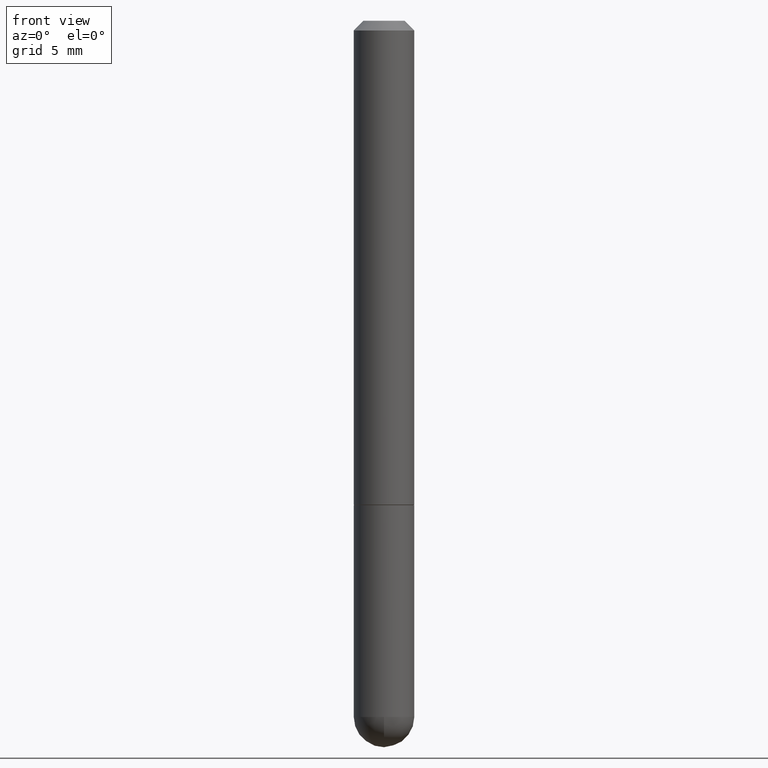
[diagram: clean part render]
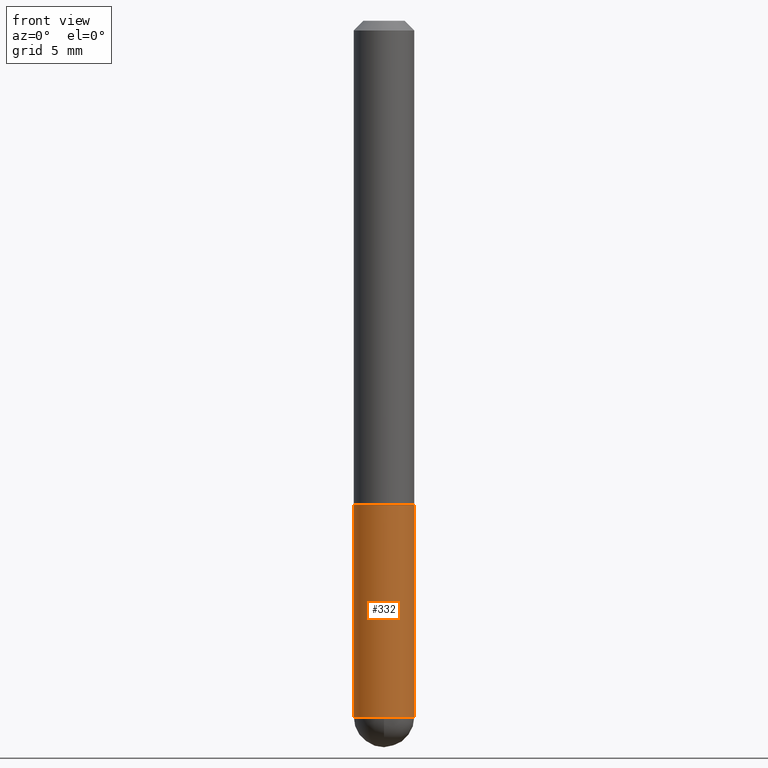
[diagram: same view with one face highlighted and labeled with its STEP entity id]
A machine part, front view. The second image highlights one B-rep face of the part: STEP entity #332.
In plain terms, the highlighted cylindrical surface (edge-blend (fillet) strip) has radius 1.5875 mm, axis along (-0, 0, 1).
Its self-contained STEP definition (entity closure, byte-faithful):
#6 = CARTESIAN_POINT ( 'NONE',  ( 0.000000000000000000, 0.000000000000000000, 0.000000000000000000 ) ) ;
#9 = FACE_OUTER_BOUND ( 'NONE', #378, .T. ) ;
#10 = VERTEX_POINT ( 'NONE', #351 ) ;
#21 = DIRECTION ( 'NONE',  ( -2.445468806185136877E-29, 3.491481338843145188E-15, 1.000000000000000000 ) ) ;
#28 = CARTESIAN_POINT ( 'NONE',  ( -0.06250000000000000000, -3.811153671865022332E-15, -1.000000000000000222 ) ) ;
#39 = VERTEX_POINT ( 'NONE', #28 ) ;
#40 = DIRECTION ( 'NONE',  ( 1.000000000000000000, -6.982962677686262766E-15, 0.000000000000000000 ) ) ;
#44 = DIRECTION ( 'NONE',  ( -2.445468806185136597E-29, 3.491481338843145583E-15, 1.000000000000000000 ) ) ;
#57 = LINE ( 'NONE', #287, #227 ) ;
#61 = VERTEX_POINT ( 'NONE', #187 ) ;
#70 = CYLINDRICAL_SURFACE ( 'NONE', #106, 0.06249999999999997224 ) ;
#73 = ORIENTED_EDGE ( 'NONE', *, *, #407, .T. ) ;
#77 = EDGE_CURVE ( 'NONE', #10, #39, #57, .T. ) ;
#84 = CARTESIAN_POINT ( 'NONE',  ( -4.440892098500294840E-16, -0.06250000000000532907, -1.437500000000000000 ) ) ;
#85 = VECTOR ( 'NONE', #87, 39.37007874015748143 ) ;
#87 = DIRECTION ( 'NONE',  ( -2.445468806185136877E-29, 3.491481338843145188E-15, 1.000000000000000000 ) ) ;
#101 = VERTEX_POINT ( 'NONE', #84 ) ;
#106 = AXIS2_PLACEMENT_3D ( 'NONE', #6, #201, #322 ) ;
#120 = CARTESIAN_POINT ( 'NONE',  ( 2.445468806185136877E-29, -3.491481338843145977E-15, -1.000000000000000222 ) ) ;
#144 = ORIENTED_EDGE ( 'NONE', *, *, #231, .T. ) ;
#145 = DIRECTION ( 'NONE',  ( -2.445468806185136597E-29, 3.491481338843145583E-15, 1.000000000000000000 ) ) ;
#166 = ORIENTED_EDGE ( 'NONE', *, *, #171, .T. ) ;
#171 = EDGE_CURVE ( 'NONE', #61, #410, #404, .T. ) ;
#182 = CIRCLE ( 'NONE', #384, 0.06249999999999995143 ) ;
#187 = CARTESIAN_POINT ( 'NONE',  ( 0.06249999999999995143, -4.691678049070475040E-15, -1.437500000000000222 ) ) ;
#194 = CARTESIAN_POINT ( 'NONE',  ( 3.515361408891134418E-29, -5.019004424587023131E-15, -1.437500000000000222 ) ) ;
#201 = DIRECTION ( 'NONE',  ( -2.445468806185136597E-29, 3.491481338843145583E-15, 1.000000000000000000 ) ) ;
#215 = AXIS2_PLACEMENT_3D ( 'NONE', #120, #145, #40 ) ;
#227 = VECTOR ( 'NONE', #21, 39.37007874015748143 ) ;
#231 = EDGE_CURVE ( 'NONE', #101, #61, #182, .T. ) ;
#235 = CIRCLE ( 'NONE', #367, 0.06249999999999995143 ) ;
#239 = CARTESIAN_POINT ( 'NONE',  ( 3.515361408891134418E-29, -5.019004424587023131E-15, -1.437500000000000222 ) ) ;
#271 = DIRECTION ( 'NONE',  ( -2.445468806185136597E-29, 3.491481338843145583E-15, 1.000000000000000000 ) ) ;
#287 = CARTESIAN_POINT ( 'NONE',  ( -0.06249999999999997224, 4.440892098500624190E-16, -3.074334431409315063E-30 ) ) ;
#293 = ORIENTED_EDGE ( 'NONE', *, *, #77, .F. ) ;
#302 = CARTESIAN_POINT ( 'NONE',  ( 0.06250000000000000000, -3.927916506198537646E-15, -1.000000000000000222 ) ) ;
#320 = ORIENTED_EDGE ( 'NONE', *, *, #381, .F. ) ;
#322 = DIRECTION ( 'NONE',  ( 1.000000000000000000, -6.982962677686266711E-15, 4.876176775795935793E-29 ) ) ;
#332 = ADVANCED_FACE ( 'NONE', ( #9 ), #70, .T. ) ;
#350 = CIRCLE ( 'NONE', #215, 0.06250000000000000000 ) ;
#351 = CARTESIAN_POINT ( 'NONE',  ( -0.06249999999999995143, -3.811153671865022332E-15, -1.437500000000000222 ) ) ;
#354 = DIRECTION ( 'NONE',  ( 1.000000000000000000, -6.982962677686268288E-15, 0.000000000000000000 ) ) ;
#365 = DIRECTION ( 'NONE',  ( 1.000000000000000000, -6.982962677686268288E-15, 0.000000000000000000 ) ) ;
#367 = AXIS2_PLACEMENT_3D ( 'NONE', #239, #44, #365 ) ;
#372 = CARTESIAN_POINT ( 'NONE',  ( 0.06249999999999997224, -4.364351673553914722E-16, 3.047610484872458469E-30 ) ) ;
#378 = EDGE_LOOP ( 'NONE', ( #293, #73, #144, #166, #320 ) ) ;
#381 = EDGE_CURVE ( 'NONE', #39, #410, #350, .T. ) ;
#384 = AXIS2_PLACEMENT_3D ( 'NONE', #194, #271, #354 ) ;
#404 = LINE ( 'NONE', #372, #85 ) ;
#407 = EDGE_CURVE ( 'NONE', #10, #101, #235, .T. ) ;
#410 = VERTEX_POINT ( 'NONE', #302 ) ;